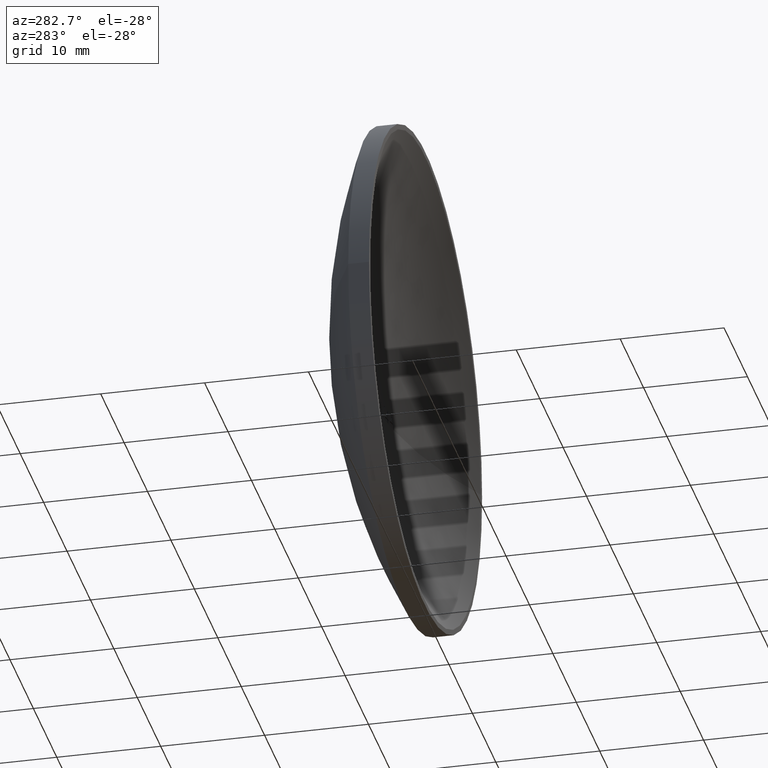
[diagram: clean part render]
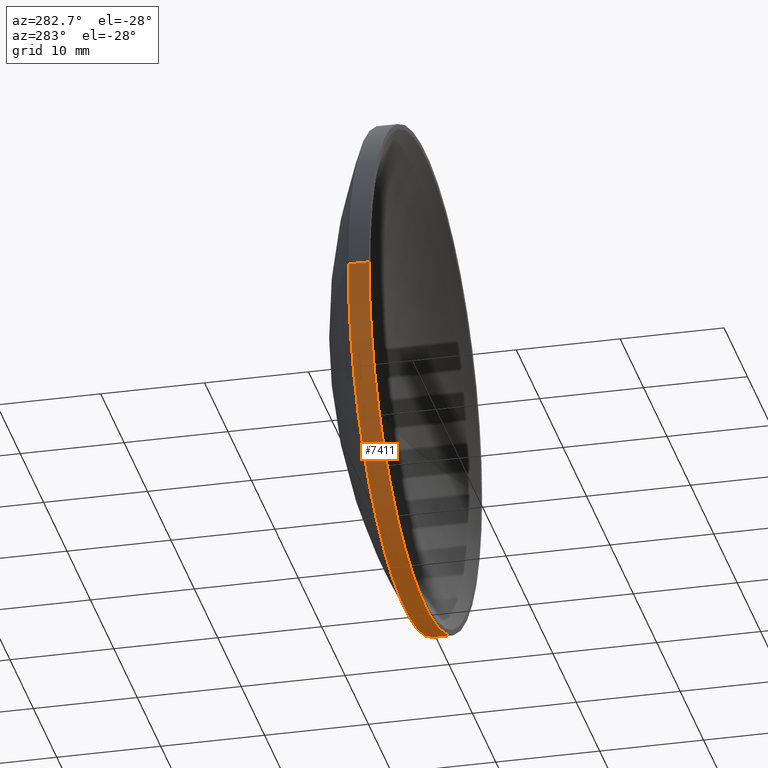
[diagram: same view with one face highlighted and labeled with its STEP entity id]
A machine part, auxiliary view. The second image highlights one B-rep face of the part: STEP entity #7411.
In plain terms, the highlighted cylindrical surface (partial cylindrical patch) has radius 24.15 mm, axis along (-0, -1, -0).
Its self-contained STEP definition (entity closure, byte-faithful):
#27 = LINE ( 'NONE', #7566, #11613 ) ;
#36 = ORIENTED_EDGE ( 'NONE', *, *, #1424, .F. ) ;
#136 = CARTESIAN_POINT ( 'NONE',  ( 24.15000000000000200, -3.289773810250057000E-015, 0.0000000000000000000 ) ) ;
#142 = ORIENTED_EDGE ( 'NONE', *, *, #2218, .F. ) ;
#322 = ORIENTED_EDGE ( 'NONE', *, *, #6717, .T. ) ;
#369 = VERTEX_POINT ( 'NONE', #478 ) ;
#478 = CARTESIAN_POINT ( 'NONE',  ( 24.15000000000000600, 1.999999999999988000, 0.0000000000000000000 ) ) ;
#1372 = AXIS2_PLACEMENT_3D ( 'NONE', #6656, #10479, #10444 ) ;
#1424 = EDGE_CURVE ( 'NONE', #7655, #11305, #3898, .T. ) ;
#1494 = CIRCLE ( 'NONE', #1372, 24.15000000000003400 ) ;
#2218 = EDGE_CURVE ( 'NONE', #10146, #7655, #11254, .T. ) ;
#2558 = AXIS2_PLACEMENT_3D ( 'NONE', #11031, #7415, #9285 ) ;
#3898 = CIRCLE ( 'NONE', #2558, 24.15000000000004500 ) ;
#4601 = CARTESIAN_POINT ( 'NONE',  ( -24.15000000000005900, 2.000000000000341900, 2.957522019940862300E-015 ) ) ;
#4745 = DIRECTION ( 'NONE',  ( -7.319342501363578300E-015, -1.000000000000000000, -0.0000000000000000000 ) ) ;
#5014 = AXIS2_PLACEMENT_3D ( 'NONE', #5022, #10567, #9521 ) ;
#5022 = CARTESIAN_POINT ( 'NONE',  ( 0.0000000000000000000, 5.999999999999991100, 0.0000000000000000000 ) ) ;
#5422 = CARTESIAN_POINT ( 'NONE',  ( -24.15000000000009100, 3.502344690056114000E-013, 2.957522019940864600E-015 ) ) ;
#6656 = CARTESIAN_POINT ( 'NONE',  ( -2.927737000545303800E-014, 2.000000000000164800, 0.0000000000000000000 ) ) ;
#6717 = EDGE_CURVE ( 'NONE', #369, #11305, #27, .T. ) ;
#7077 = VECTOR ( 'NONE', #4745, 1000.000000000000000 ) ;
#7411 = ADVANCED_FACE ( 'NONE', ( #9929 ), #8342, .T. ) ;
#7415 = DIRECTION ( 'NONE',  ( -7.319342501363578300E-015, -1.000000000000000000, -0.0000000000000000000 ) ) ;
#7566 = CARTESIAN_POINT ( 'NONE',  ( 24.15000000000004100, 5.999999999999814400, 0.0000000000000000000 ) ) ;
#7655 = VERTEX_POINT ( 'NONE', #5422 ) ;
#8342 = CYLINDRICAL_SURFACE ( 'NONE', #5014, 24.15000000000004100 ) ;
#9285 = DIRECTION ( 'NONE',  ( 1.000000000000000000, -7.319342501363579900E-015, 0.0000000000000000000 ) ) ;
#9352 = DIRECTION ( 'NONE',  ( -7.319342501363578300E-015, -1.000000000000000000, -0.0000000000000000000 ) ) ;
#9521 = DIRECTION ( 'NONE',  ( 1.000000000000000000, -7.326782383007619600E-015, 0.0000000000000000000 ) ) ;
#9610 = EDGE_CURVE ( 'NONE', #10146, #369, #1494, .T. ) ;
#9929 = FACE_OUTER_BOUND ( 'NONE', #11559, .T. ) ;
#10146 = VERTEX_POINT ( 'NONE', #4601 ) ;
#10290 = CARTESIAN_POINT ( 'NONE',  ( -24.15000000000004100, 6.000000000000168800, 2.957522019940862700E-015 ) ) ;
#10444 = DIRECTION ( 'NONE',  ( 1.000000000000000000, -7.326782383007622800E-015, 0.0000000000000000000 ) ) ;
#10479 = DIRECTION ( 'NONE',  ( -7.319342501363578300E-015, -1.000000000000000000, -0.0000000000000000000 ) ) ;
#10567 = DIRECTION ( 'NONE',  ( -7.319342501363578300E-015, -1.000000000000000000, -0.0000000000000000000 ) ) ;
#10663 = ORIENTED_EDGE ( 'NONE', *, *, #9610, .T. ) ;
#11031 = CARTESIAN_POINT ( 'NONE',  ( -4.391605500818014100E-014, 1.734723475976807100E-013, 0.0000000000000000000 ) ) ;
#11254 = LINE ( 'NONE', #10290, #7077 ) ;
#11305 = VERTEX_POINT ( 'NONE', #136 ) ;
#11559 = EDGE_LOOP ( 'NONE', ( #142, #10663, #322, #36 ) ) ;
#11613 = VECTOR ( 'NONE', #9352, 1000.000000000000000 ) ;